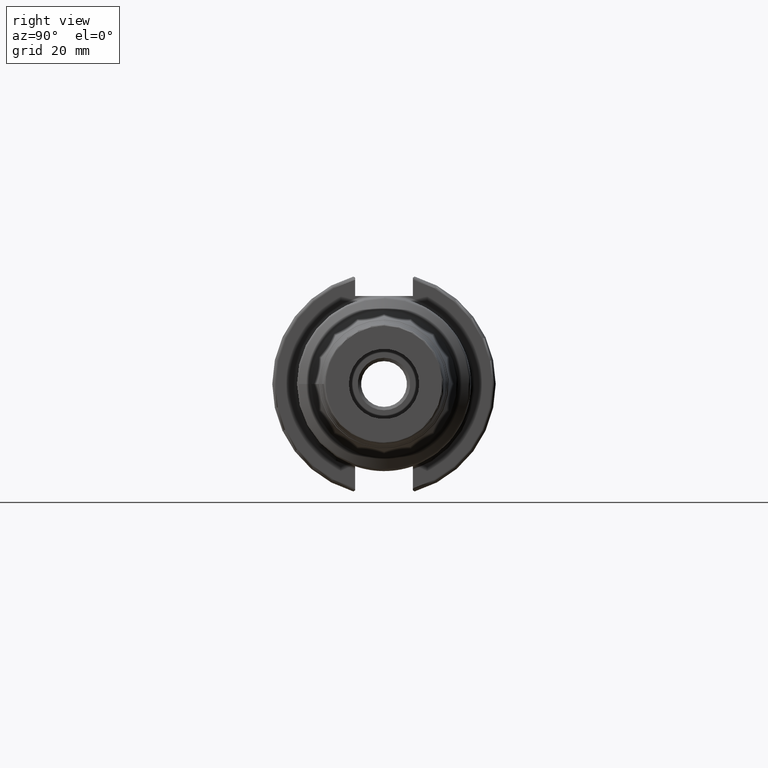
[diagram: clean part render]
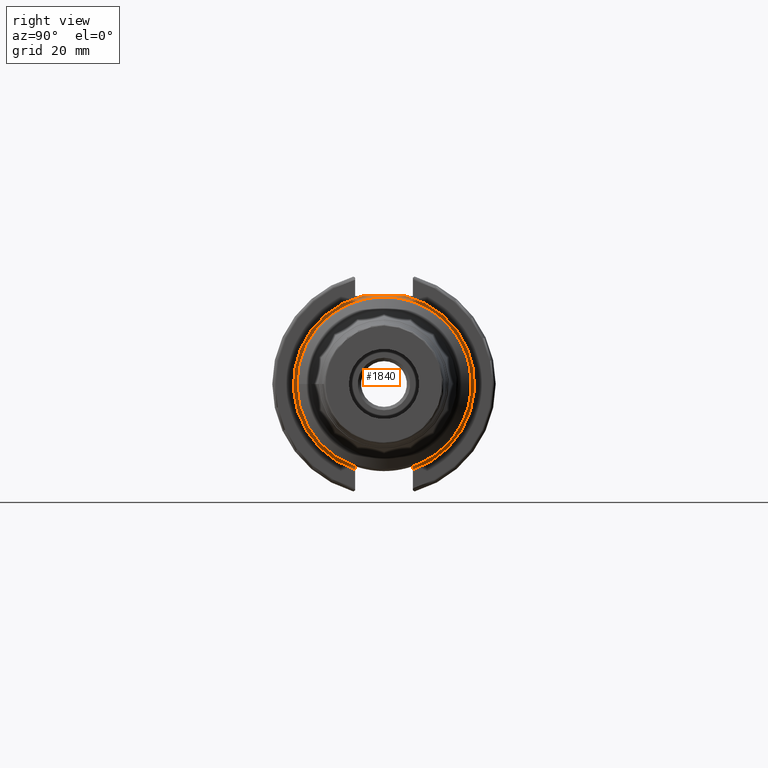
[diagram: same view with one face highlighted and labeled with its STEP entity id]
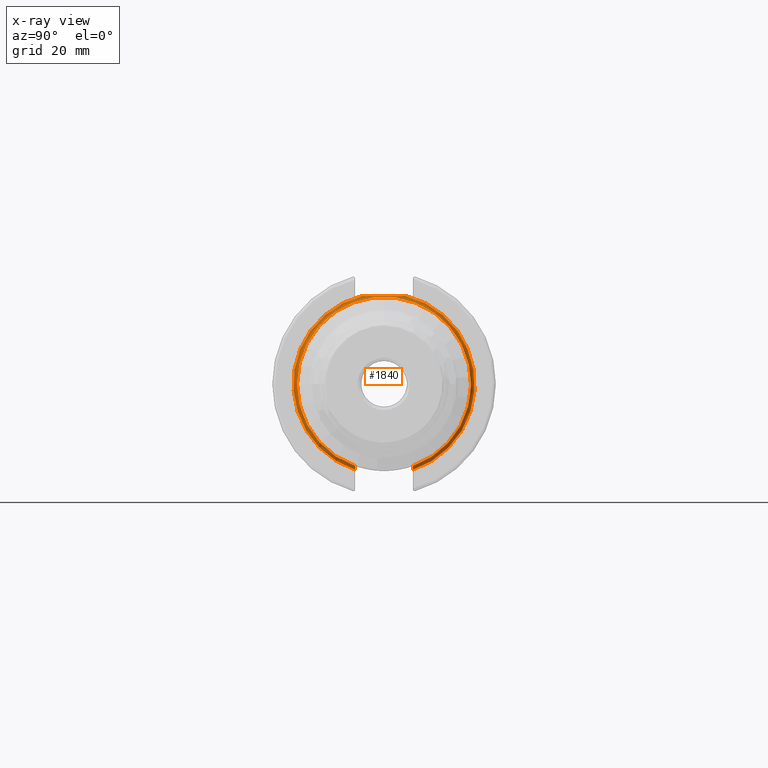
[diagram: x-ray of the same camera — body ghosted, the highlighted face saturated]
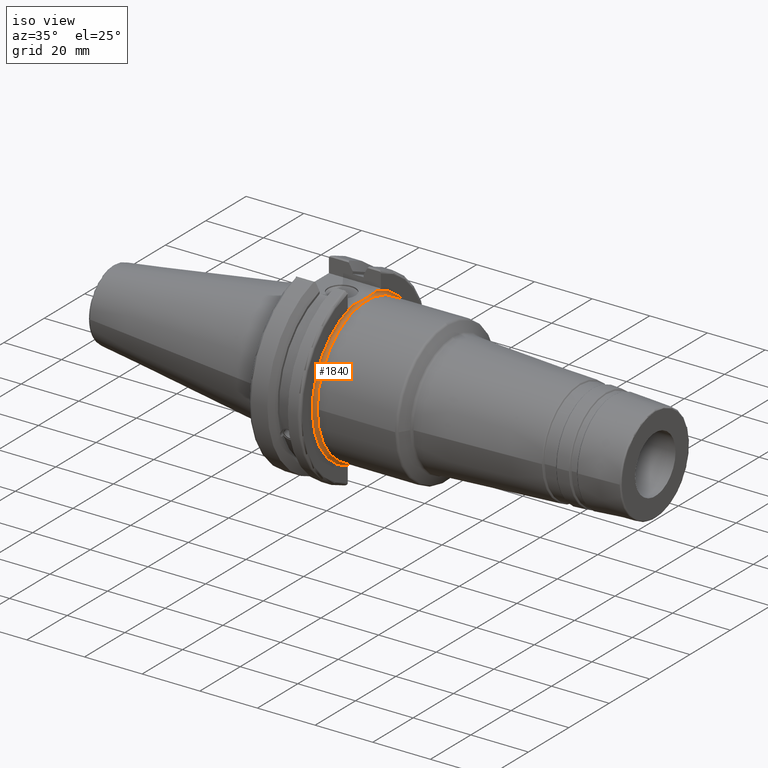
[diagram: same view with one face highlighted and labeled with its STEP entity id]
A machine part, right view. The second image highlights one B-rep face of the part: STEP entity #1840.
The next image is the same camera in x-ray: the body ghosted, the highlighted face saturated — about 5% of this face is hidden behind the body in this view.
A second angle (iso view) of the same face is appended — the face is thin or edge-on in the first view.
In plain terms, the highlighted toroidal blend (fillet) surface has major radius 25.75 mm and minor (blend) radius 1 mm.
Its self-contained STEP definition (entity closure, byte-faithful):
#52=B_SPLINE_CURVE_WITH_KNOTS('',3,(#2954,#2955,#2956,#2957,#2958,#2959,
#2960,#2961,#2962,#2963),.UNSPECIFIED.,.F.,.F.,(4,2,2,2,4),(1.28229186042809,
1.47392183654147,1.862003561099,2.25008528565653,2.44171526176991),
 .UNSPECIFIED.);
#53=B_SPLINE_CURVE_WITH_KNOTS('',3,(#2966,#2967,#2968,#2969,#2970,#2971,
#2972,#2973,#2974,#2975),.UNSPECIFIED.,.F.,.F.,(4,2,2,2,4),(0.152036209068872,
0.19179652975479,0.230554749961229,0.268011696377573,0.304368806480559),
 .UNSPECIFIED.);
#54=B_SPLINE_CURVE_WITH_KNOTS('',3,(#2977,#2978,#2979,#2980,#2981,#2982,
#2983,#2984,#2985,#2986),.UNSPECIFIED.,.F.,.F.,(4,2,2,2,4),(0.304368806480559,
0.340725916583545,0.378182862999889,0.416941083206328,0.456701403892246),
 .UNSPECIFIED.);
#399=FACE_OUTER_BOUND('',#506,.T.);
#506=EDGE_LOOP('',(#1349,#1350,#1351,#1352,#1353,#1354,#1355));
#658=CIRCLE('',#2024,24.75);
#659=CIRCLE('',#2025,24.75);
#660=CIRCLE('',#2027,25.75);
#661=CIRCLE('',#2028,25.75);
#774=VERTEX_POINT('',#2927);
#775=VERTEX_POINT('',#2929);
#776=VERTEX_POINT('',#2931);
#777=VERTEX_POINT('',#2952);
#778=VERTEX_POINT('',#2953);
#779=VERTEX_POINT('',#2964);
#780=VERTEX_POINT('',#2976);
#989=EDGE_CURVE('',#775,#774,#658,.T.);
#991=EDGE_CURVE('',#774,#776,#659,.T.);
#992=EDGE_CURVE('',#777,#778,#52,.F.);
#993=EDGE_CURVE('',#777,#779,#660,.T.);
#994=EDGE_CURVE('',#779,#775,#53,.T.);
#995=EDGE_CURVE('',#776,#780,#54,.T.);
#996=EDGE_CURVE('',#780,#778,#661,.T.);
#1349=ORIENTED_EDGE('',*,*,#992,.F.);
#1350=ORIENTED_EDGE('',*,*,#993,.T.);
#1351=ORIENTED_EDGE('',*,*,#994,.T.);
#1352=ORIENTED_EDGE('',*,*,#989,.T.);
#1353=ORIENTED_EDGE('',*,*,#991,.T.);
#1354=ORIENTED_EDGE('',*,*,#995,.T.);
#1355=ORIENTED_EDGE('',*,*,#996,.T.);
#1810=TOROIDAL_SURFACE('',#2026,25.75,1.);
#1840=ADVANCED_FACE('',(#399),#1810,.F.);
#2024=AXIS2_PLACEMENT_3D('',#2930,#2366,#2367);
#2025=AXIS2_PLACEMENT_3D('',#2950,#2368,#2369);
#2026=AXIS2_PLACEMENT_3D('',#2951,#2370,#2371);
#2027=AXIS2_PLACEMENT_3D('',#2965,#2372,#2373);
#2028=AXIS2_PLACEMENT_3D('',#2987,#2374,#2375);
#2366=DIRECTION('center_axis',(-1.,0.,0.));
#2367=DIRECTION('ref_axis',(0.,6.12323399573677E-17,1.));
#2368=DIRECTION('center_axis',(-1.,0.,0.));
#2369=DIRECTION('ref_axis',(0.,6.12323399573677E-17,1.));
#2370=DIRECTION('center_axis',(-1.,0.,0.));
#2371=DIRECTION('ref_axis',(0.,0.,1.));
#2372=DIRECTION('center_axis',(1.,0.,0.));
#2373=DIRECTION('ref_axis',(0.,6.12323399573677E-17,1.));
#2374=DIRECTION('center_axis',(1.,0.,0.));
#2375=DIRECTION('ref_axis',(0.,6.12323399573677E-17,1.));
#2927=CARTESIAN_POINT('',(20.05,-24.75,-3.0310008278897E-15));
#2929=CARTESIAN_POINT('',(20.05,-8.19,-23.3556502799644));
#2930=CARTESIAN_POINT('Origin',(20.05,0.,0.));
#2931=CARTESIAN_POINT('',(20.05,8.19,-23.3556502799644));
#2950=CARTESIAN_POINT('Origin',(20.05,0.,0.));
#2951=CARTESIAN_POINT('Origin',(20.05,0.,0.));
#2952=CARTESIAN_POINT('',(19.05,-6.16948133962652,25.));
#2953=CARTESIAN_POINT('',(19.05,6.16948133962652,25.));
#2954=CARTESIAN_POINT('Ctrl Pts',(19.05,6.16948133962652,25.));
#2955=CARTESIAN_POINT('Ctrl Pts',(19.05,5.53071475258193,25.));
#2956=CARTESIAN_POINT('Ctrl Pts',(19.0917093675371,4.76533047486055,25.));
#2957=CARTESIAN_POINT('Ctrl Pts',(19.2334466867335,2.83816328553263,25.));
#2958=CARTESIAN_POINT('Ctrl Pts',(19.3885621722339,1.29360574852511,25.));
#2959=CARTESIAN_POINT('Ctrl Pts',(19.3885621722339,-1.29360574852511,25.));
#2960=CARTESIAN_POINT('Ctrl Pts',(19.2334466867335,-2.83816328553263,25.));
#2961=CARTESIAN_POINT('Ctrl Pts',(19.0917093675371,-4.76533047486055,25.));
#2962=CARTESIAN_POINT('Ctrl Pts',(19.05,-5.53071475258193,25.));
#2963=CARTESIAN_POINT('Ctrl Pts',(19.05,-6.16948133962652,25.));
#2964=CARTESIAN_POINT('',(19.05,-8.19,-24.4128326910254));
#2965=CARTESIAN_POINT('Origin',(19.05,0.,0.));
#2966=CARTESIAN_POINT('Ctrl Pts',(19.05,-8.19,-24.4128326910254));
#2967=CARTESIAN_POINT('Ctrl Pts',(19.05,-8.19,-24.280298288739));
#2968=CARTESIAN_POINT('Ctrl Pts',(19.079885359023,-8.19,-24.124090110551));
#2969=CARTESIAN_POINT('Ctrl Pts',(19.177275426903,-8.19,-23.8811560320461));
#2970=CARTESIAN_POINT('Ctrl Pts',(19.2609009617474,-8.19,-23.7506111583087));
#2971=CARTESIAN_POINT('Ctrl Pts',(19.4373931081247,-8.19,-23.5678758115065));
#2972=CARTESIAN_POINT('Ctrl Pts',(19.5602603745075,-8.19,-23.4821320058467));
#2973=CARTESIAN_POINT('Ctrl Pts',(19.7864204604307,-8.19,-23.3852265342659));
#2974=CARTESIAN_POINT('Ctrl Pts',(19.92880963299,-8.19,-23.3556502799644));
#2975=CARTESIAN_POINT('Ctrl Pts',(20.05,-8.19,-23.3556502799644));
#2976=CARTESIAN_POINT('',(19.05,8.19,-24.4128326910254));
#2977=CARTESIAN_POINT('Ctrl Pts',(20.05,8.19,-23.3556502799644));
#2978=CARTESIAN_POINT('Ctrl Pts',(19.92880963299,8.19,-23.3556502799644));
#2979=CARTESIAN_POINT('Ctrl Pts',(19.7864204604307,8.19,-23.3852265342659));
#2980=CARTESIAN_POINT('Ctrl Pts',(19.5602603745075,8.19,-23.4821320058467));
#2981=CARTESIAN_POINT('Ctrl Pts',(19.4373931081247,8.19,-23.5678758115065));
#2982=CARTESIAN_POINT('Ctrl Pts',(19.2609009617474,8.19,-23.7506111583087));
#2983=CARTESIAN_POINT('Ctrl Pts',(19.177275426903,8.19,-23.8811560320461));
#2984=CARTESIAN_POINT('Ctrl Pts',(19.079885359023,8.19,-24.124090110551));
#2985=CARTESIAN_POINT('Ctrl Pts',(19.05,8.19,-24.280298288739));
#2986=CARTESIAN_POINT('Ctrl Pts',(19.05,8.19,-24.4128326910254));
#2987=CARTESIAN_POINT('Origin',(19.05,0.,0.));